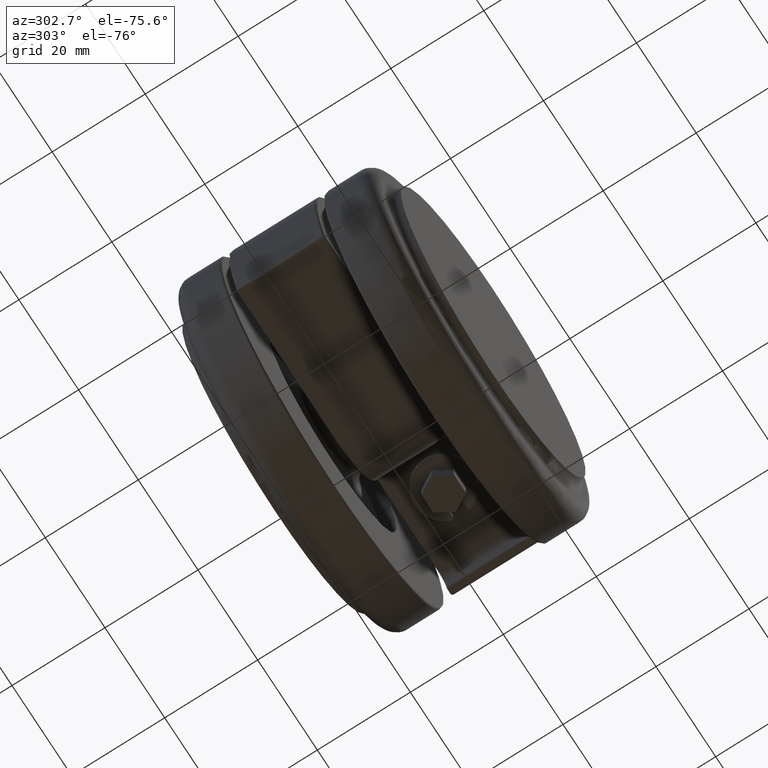
[diagram: clean part render]
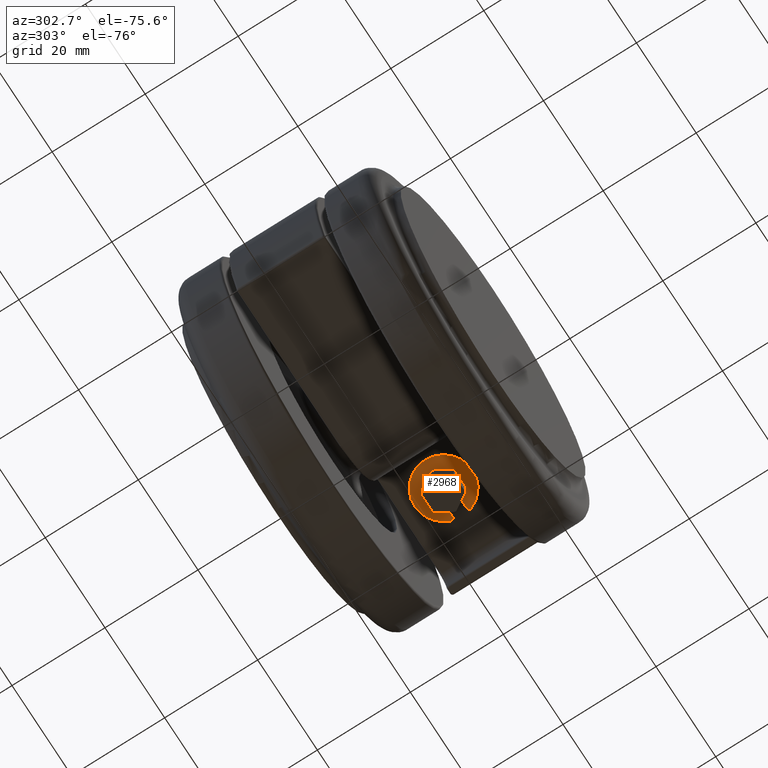
[diagram: same view with one face highlighted and labeled with its STEP entity id]
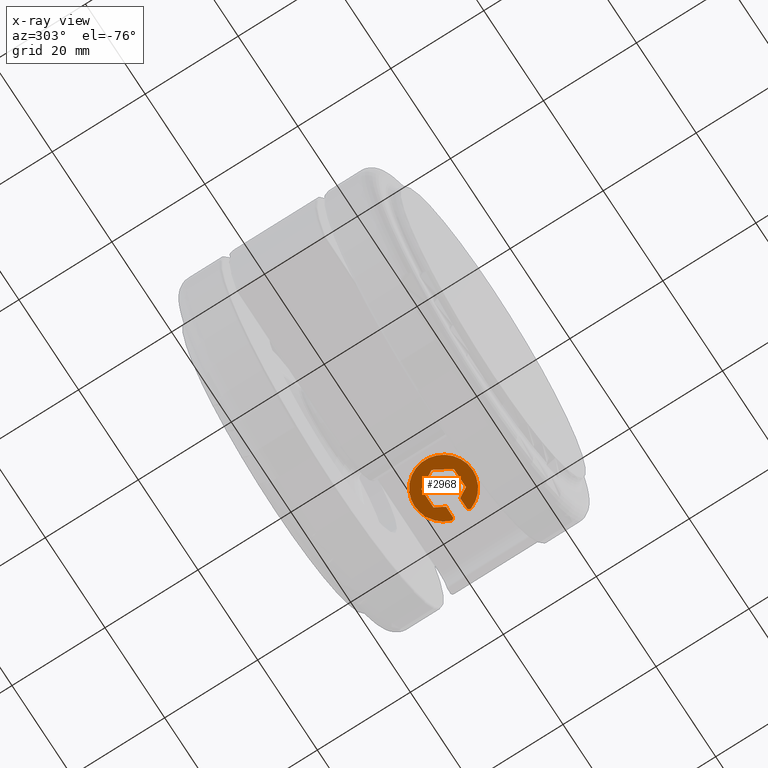
[diagram: x-ray of the same camera — body ghosted, the highlighted face saturated]
A machine part, auxiliary view. The second image highlights one B-rep face of the part: STEP entity #2968.
The next image is the same camera in x-ray: the body ghosted, the highlighted face saturated — about 1% of this face is hidden behind the body in this view.
In plain terms, the highlighted planar face has unit normal (0, 0, -1).
Its self-contained STEP definition (entity closure, byte-faithful):
#39 = CARTESIAN_POINT ( 'NONE',  ( 5.890964663211948800, -2.000000000000029800, -39.11339081420359800 ) ) ;
#42 = AXIS2_PLACEMENT_3D ( 'NONE', #1438, #2711, #272 ) ;
#104 = EDGE_CURVE ( 'NONE', #1446, #713, #3300, .T. ) ;
#115 = VERTEX_POINT ( 'NONE', #3051 ) ;
#203 = AXIS2_PLACEMENT_3D ( 'NONE', #2298, #463, #2605 ) ;
#263 = EDGE_LOOP ( 'NONE', ( #2532, #1717, #3232, #2445, #1617, #3950, #3135, #2337, #707, #3039, #621, #2947, #2151 ) ) ;
#272 = DIRECTION ( 'NONE',  ( -1.000000000000000000, 0.0000000000000000000, 0.0000000000000000000 ) ) ;
#320 = EDGE_CURVE ( 'NONE', #1763, #1575, #1014, .T. ) ;
#383 = VECTOR ( 'NONE', #1570, 1000.000000000000000 ) ;
#463 = DIRECTION ( 'NONE',  ( 0.0000000000000000000, 0.0000000000000000000, -1.000000000000000000 ) ) ;
#552 = EDGE_CURVE ( 'NONE', #1434, #1763, #3580, .T. ) ;
#619 = LINE ( 'NONE', #3217, #3745 ) ;
#621 = ORIENTED_EDGE ( 'NONE', *, *, #2052, .T. ) ;
#707 = ORIENTED_EDGE ( 'NONE', *, *, #2089, .T. ) ;
#713 = VERTEX_POINT ( 'NONE', #2303 ) ;
#760 = CARTESIAN_POINT ( 'NONE',  ( -4.041451884327329900, 2.842170943040399500E-014, -39.11339081420359800 ) ) ;
#771 = CARTESIAN_POINT ( 'NONE',  ( 2.020725942163720000, 3.500000000000000000, -39.11339081420359800 ) ) ;
#797 = EDGE_CURVE ( 'NONE', #2291, #1434, #2910, .T. ) ;
#888 = CARTESIAN_POINT ( 'NONE',  ( 5.859744199143420900, -2.173913043478290100, -39.11339081420359800 ) ) ;
#925 = DIRECTION ( 'NONE',  ( -1.000000000000000000, -0.0000000000000000000, -0.0000000000000000000 ) ) ;
#1014 = CIRCLE ( 'NONE', #42, 6.250000000000000000 ) ;
#1025 = LINE ( 'NONE', #2911, #3351 ) ;
#1109 = DIRECTION ( 'NONE',  ( -1.000000000000000000, 0.0000000000000000000, 0.0000000000000000000 ) ) ;
#1167 = DIRECTION ( 'NONE',  ( -1.000000000000000000, 0.0000000000000000000, 0.0000000000000000000 ) ) ;
#1187 = EDGE_CURVE ( 'NONE', #2254, #2706, #3618, .T. ) ;
#1331 = VERTEX_POINT ( 'NONE', #3119 ) ;
#1367 = EDGE_CURVE ( 'NONE', #115, #1446, #2957, .T. ) ;
#1431 = DIRECTION ( 'NONE',  ( 0.0000000000000000000, 0.0000000000000000000, -1.000000000000000000 ) ) ;
#1434 = VERTEX_POINT ( 'NONE', #39 ) ;
#1438 = CARTESIAN_POINT ( 'NONE',  ( 0.0000000000000000000, 0.0000000000000000000, -39.11339081420359800 ) ) ;
#1446 = VERTEX_POINT ( 'NONE', #760 ) ;
#1486 = CIRCLE ( 'NONE', #2731, 0.5000000000000004400 ) ;
#1489 = CARTESIAN_POINT ( 'NONE',  ( 3.175426480542910200, -1.500000000000030000, -39.11339081420354800 ) ) ;
#1546 = EDGE_CURVE ( 'NONE', #2351, #1331, #1486, .T. ) ;
#1569 = DIRECTION ( 'NONE',  ( 1.000000000000000000, 0.0000000000000000000, 0.0000000000000000000 ) ) ;
#1570 = DIRECTION ( 'NONE',  ( -0.4999999999999851800, 0.8660254037844472600, -0.0000000000000000000 ) ) ;
#1575 = VERTEX_POINT ( 'NONE', #3856 ) ;
#1586 = CARTESIAN_POINT ( 'NONE',  ( 3.031088913245570300, 1.749999999999950000, -39.11339081420354800 ) ) ;
#1617 = ORIENTED_EDGE ( 'NONE', *, *, #552, .T. ) ;
#1649 = DIRECTION ( 'NONE',  ( 0.0000000000000000000, 0.0000000000000000000, -1.000000000000000000 ) ) ;
#1682 = VECTOR ( 'NONE', #3307, 1000.000000000000100 ) ;
#1717 = ORIENTED_EDGE ( 'NONE', *, *, #2408, .T. ) ;
#1763 = VERTEX_POINT ( 'NONE', #888 ) ;
#1793 = CARTESIAN_POINT ( 'NONE',  ( 5.390964663211949700, -2.000000000000029800, -39.11339081420359800 ) ) ;
#1925 = CARTESIAN_POINT ( 'NONE',  ( -3.031088913245570300, 1.749999999999950000, -39.11339081420354800 ) ) ;
#1965 = CARTESIAN_POINT ( 'NONE',  ( 5.390964663211920400, -1.500000000000030000, -39.11339081420359800 ) ) ;
#2052 = EDGE_CURVE ( 'NONE', #2706, #115, #2670, .T. ) ;
#2081 = CARTESIAN_POINT ( 'NONE',  ( -3.031088913245560100, -1.749999999999944900, -39.11339081420354800 ) ) ;
#2089 = EDGE_CURVE ( 'NONE', #1331, #2254, #3903, .T. ) ;
#2114 = EDGE_CURVE ( 'NONE', #3709, #2291, #3178, .T. ) ;
#2151 = ORIENTED_EDGE ( 'NONE', *, *, #104, .T. ) ;
#2160 = DIRECTION ( 'NONE',  ( -1.000000000000000000, -1.281063397580850000E-014, 0.0000000000000000000 ) ) ;
#2172 = CARTESIAN_POINT ( 'NONE',  ( 5.390964663211979900, 1.500000000000000000, -39.11339081420359800 ) ) ;
#2239 = CARTESIAN_POINT ( 'NONE',  ( 5.390964663211979900, 2.000000000000000000, -39.11339081420359800 ) ) ;
#2254 = VERTEX_POINT ( 'NONE', #3156 ) ;
#2291 = VERTEX_POINT ( 'NONE', #1965 ) ;
#2298 = CARTESIAN_POINT ( 'NONE',  ( 5.390964663211979900, 2.000000000000000000, -39.11339081420359800 ) ) ;
#2303 = CARTESIAN_POINT ( 'NONE',  ( -2.020725942163720000, -3.500000000000000000, -39.11339081420359800 ) ) ;
#2309 = DIRECTION ( 'NONE',  ( 1.000000000000000000, -0.0000000000000000000, -0.0000000000000000000 ) ) ;
#2337 = ORIENTED_EDGE ( 'NONE', *, *, #1546, .T. ) ;
#2351 = VERTEX_POINT ( 'NONE', #3781 ) ;
#2408 = EDGE_CURVE ( 'NONE', #3423, #3709, #619, .T. ) ;
#2428 = CARTESIAN_POINT ( 'NONE',  ( 2.020725942163720000, -3.500000000000000000, -39.11339081420359800 ) ) ;
#2438 = AXIS2_PLACEMENT_3D ( 'NONE', #2808, #3726, #1109 ) ;
#2445 = ORIENTED_EDGE ( 'NONE', *, *, #797, .T. ) ;
#2489 = VECTOR ( 'NONE', #925, 1000.000000000000000 ) ;
#2532 = ORIENTED_EDGE ( 'NONE', *, *, #3609, .T. ) ;
#2543 = DIRECTION ( 'NONE',  ( -0.4999999999999851800, -0.8660254037844472600, -0.0000000000000000000 ) ) ;
#2605 = DIRECTION ( 'NONE',  ( -1.000000000000000000, 0.0000000000000000000, 0.0000000000000000000 ) ) ;
#2641 = DIRECTION ( 'NONE',  ( -1.000000000000000000, 0.0000000000000000000, 0.0000000000000000000 ) ) ;
#2670 = LINE ( 'NONE', #2747, #2489 ) ;
#2689 = CARTESIAN_POINT ( 'NONE',  ( 2.598076211353439900, -1.500000000000030000, -39.11339081420359800 ) ) ;
#2706 = VERTEX_POINT ( 'NONE', #771 ) ;
#2711 = DIRECTION ( 'NONE',  ( 0.0000000000000000000, 0.0000000000000000000, -1.000000000000000000 ) ) ;
#2731 = AXIS2_PLACEMENT_3D ( 'NONE', #2239, #1431, #2641 ) ;
#2747 = CARTESIAN_POINT ( 'NONE',  ( 0.0000000000000000000, 3.500000000000000000, -39.11339081420354800 ) ) ;
#2751 = CIRCLE ( 'NONE', #203, 0.5000000000000004400 ) ;
#2757 = FACE_OUTER_BOUND ( 'NONE', #263, .T. ) ;
#2785 = PLANE ( 'NONE',  #3086 ) ;
#2808 = CARTESIAN_POINT ( 'NONE',  ( 5.390964663211949700, -2.000000000000029800, -39.11339081420359800 ) ) ;
#2910 = CIRCLE ( 'NONE', #2438, 0.4999999999999995600 ) ;
#2911 = CARTESIAN_POINT ( 'NONE',  ( 0.0000000000000000000, -3.500000000000000000, -39.11339081420354800 ) ) ;
#2947 = ORIENTED_EDGE ( 'NONE', *, *, #1367, .T. ) ;
#2957 = LINE ( 'NONE', #1925, #3670 ) ;
#2968 = ADVANCED_FACE ( 'NONE', ( #2757 ), #2785, .T. ) ;
#3039 = ORIENTED_EDGE ( 'NONE', *, *, #1187, .T. ) ;
#3051 = CARTESIAN_POINT ( 'NONE',  ( -2.020725942163720000, 3.500000000000000000, -39.11339081420359800 ) ) ;
#3076 = CARTESIAN_POINT ( 'NONE',  ( 0.0000000000000000000, 0.0000000000000000000, -39.11339081420354800 ) ) ;
#3084 = VECTOR ( 'NONE', #2160, 1000.000000000000000 ) ;
#3086 = AXIS2_PLACEMENT_3D ( 'NONE', #3076, #3382, #1569 ) ;
#3119 = CARTESIAN_POINT ( 'NONE',  ( 5.390964663211979900, 1.500000000000000000, -39.11339081420359800 ) ) ;
#3135 = ORIENTED_EDGE ( 'NONE', *, *, #3578, .T. ) ;
#3156 = CARTESIAN_POINT ( 'NONE',  ( 3.175426480542960400, 1.499999999999972000, -39.11339081420354800 ) ) ;
#3178 = LINE ( 'NONE', #2689, #3791 ) ;
#3217 = CARTESIAN_POINT ( 'NONE',  ( 3.031088913245560100, -1.749999999999944900, -39.11339081420354800 ) ) ;
#3232 = ORIENTED_EDGE ( 'NONE', *, *, #2114, .T. ) ;
#3300 = LINE ( 'NONE', #2081, #1682 ) ;
#3307 = DIRECTION ( 'NONE',  ( 0.4999999999999846800, -0.8660254037844474800, -0.0000000000000000000 ) ) ;
#3351 = VECTOR ( 'NONE', #2309, 1000.000000000000000 ) ;
#3382 = DIRECTION ( 'NONE',  ( 0.0000000000000000000, 0.0000000000000000000, -1.000000000000000000 ) ) ;
#3423 = VERTEX_POINT ( 'NONE', #2428 ) ;
#3500 = AXIS2_PLACEMENT_3D ( 'NONE', #1793, #1649, #1167 ) ;
#3527 = DIRECTION ( 'NONE',  ( 1.000000000000000000, 0.0000000000000000000, 0.0000000000000000000 ) ) ;
#3578 = EDGE_CURVE ( 'NONE', #1575, #2351, #2751, .T. ) ;
#3580 = CIRCLE ( 'NONE', #3500, 0.4999999999999995600 ) ;
#3609 = EDGE_CURVE ( 'NONE', #713, #3423, #1025, .T. ) ;
#3618 = LINE ( 'NONE', #1586, #383 ) ;
#3670 = VECTOR ( 'NONE', #2543, 1000.000000000000000 ) ;
#3709 = VERTEX_POINT ( 'NONE', #1489 ) ;
#3726 = DIRECTION ( 'NONE',  ( 0.0000000000000000000, 0.0000000000000000000, -1.000000000000000000 ) ) ;
#3745 = VECTOR ( 'NONE', #3822, 1000.000000000000100 ) ;
#3781 = CARTESIAN_POINT ( 'NONE',  ( 5.890964663211980800, 2.000000000000000000, -39.11339081420359800 ) ) ;
#3791 = VECTOR ( 'NONE', #3527, 1000.000000000000000 ) ;
#3822 = DIRECTION ( 'NONE',  ( 0.4999999999999846800, 0.8660254037844474800, -0.0000000000000000000 ) ) ;
#3856 = CARTESIAN_POINT ( 'NONE',  ( 5.859744199143450200, 2.173913043478259900, -39.11339081420359800 ) ) ;
#3903 = LINE ( 'NONE', #2172, #3084 ) ;
#3950 = ORIENTED_EDGE ( 'NONE', *, *, #320, .T. ) ;